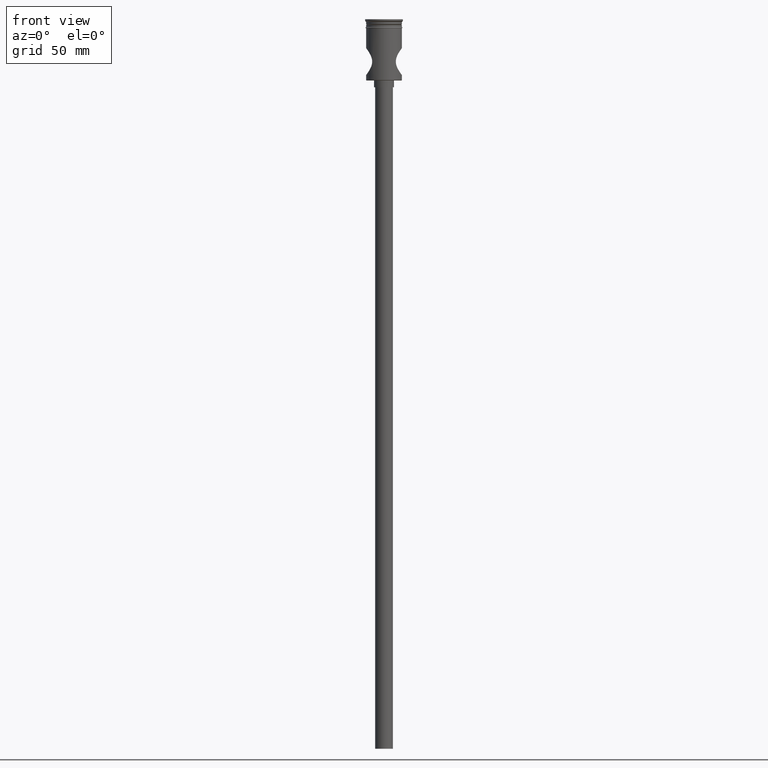
[diagram: clean part render]
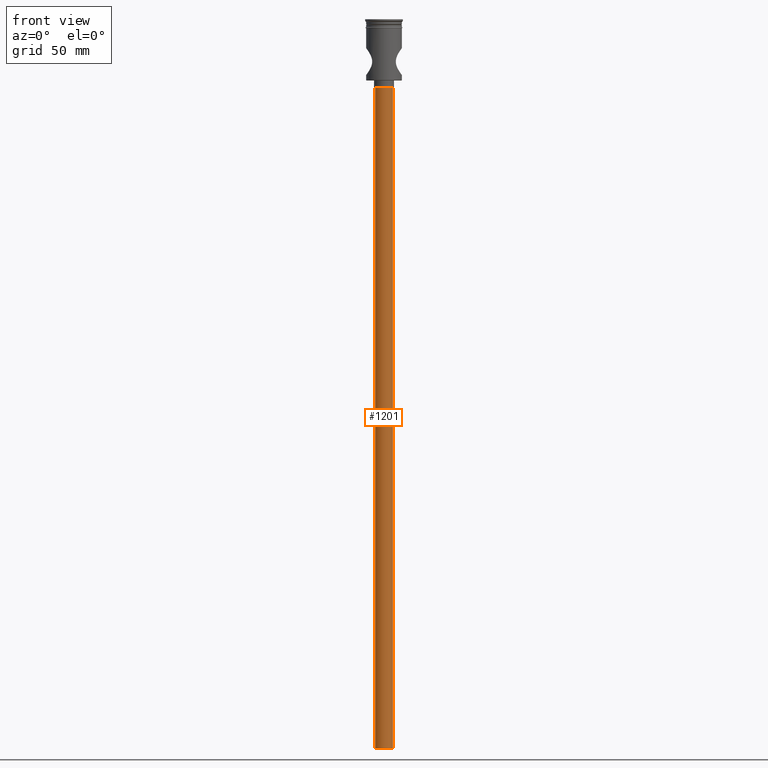
[diagram: same view with one face highlighted and labeled with its STEP entity id]
A machine part, front view. The second image highlights one B-rep face of the part: STEP entity #1201.
In plain terms, the highlighted cylindrical surface (edge-blend (fillet) strip) has radius 4 mm, axis along (-0, -0, 1).
Its self-contained STEP definition (entity closure, byte-faithful):
#13 = DIRECTION ( 'NONE',  ( -1.000000000000000000, 0.000000000000000000, 0.000000000000000000 ) ) ;
#26 = DIRECTION ( 'NONE',  ( -1.000000000000000000, 0.000000000000000000, 0.000000000000000000 ) ) ;
#123 = FACE_OUTER_BOUND ( 'NONE', #549, .T. ) ;
#129 = CIRCLE ( 'NONE', #226, 4.000000000000000000 ) ;
#136 = CARTESIAN_POINT ( 'NONE',  ( 4.000000000000000000, 0.000000000000000000, -327.5000000000000000 ) ) ;
#137 = EDGE_CURVE ( 'NONE', #626, #755, #732, .T. ) ;
#150 = DIRECTION ( 'NONE',  ( -0.000000000000000000, -0.000000000000000000, 1.000000000000000000 ) ) ;
#188 = EDGE_CURVE ( 'NONE', #626, #1164, #129, .T. ) ;
#223 = CARTESIAN_POINT ( 'NONE',  ( 4.000000000000000000, 0.000000000000000000, -30.50000000000000000 ) ) ;
#226 = AXIS2_PLACEMENT_3D ( 'NONE', #854, #1454, #26 ) ;
#275 = LINE ( 'NONE', #630, #747 ) ;
#282 = ORIENTED_EDGE ( 'NONE', *, *, #188, .F. ) ;
#362 = CARTESIAN_POINT ( 'NONE',  ( -4.000000000000000000, 4.898587196589412829E-16, -327.5000000000000000 ) ) ;
#428 = EDGE_CURVE ( 'NONE', #1164, #928, #275, .T. ) ;
#432 = CIRCLE ( 'NONE', #1364, 4.000000000000000000 ) ;
#452 = VECTOR ( 'NONE', #1072, 1000.000000000000000 ) ;
#481 = CARTESIAN_POINT ( 'NONE',  ( 0.000000000000000000, 0.000000000000000000, -327.5000000000000000 ) ) ;
#549 = EDGE_LOOP ( 'NONE', ( #1470, #282, #826, #981 ) ) ;
#575 = AXIS2_PLACEMENT_3D ( 'NONE', #481, #1448, #855 ) ;
#586 = CARTESIAN_POINT ( 'NONE',  ( 0.000000000000000000, 0.000000000000000000, -30.50000000000000000 ) ) ;
#593 = DIRECTION ( 'NONE',  ( 0.000000000000000000, 0.000000000000000000, -1.000000000000000000 ) ) ;
#626 = VERTEX_POINT ( 'NONE', #136 ) ;
#630 = CARTESIAN_POINT ( 'NONE',  ( -4.000000000000000000, 4.898587196589412829E-16, -327.5000000000000000 ) ) ;
#732 = LINE ( 'NONE', #1196, #452 ) ;
#747 = VECTOR ( 'NONE', #150, 1000.000000000000000 ) ;
#755 = VERTEX_POINT ( 'NONE', #223 ) ;
#826 = ORIENTED_EDGE ( 'NONE', *, *, #137, .T. ) ;
#854 = CARTESIAN_POINT ( 'NONE',  ( 0.000000000000000000, 0.000000000000000000, -327.5000000000000000 ) ) ;
#855 = DIRECTION ( 'NONE',  ( 1.000000000000000000, 0.000000000000000000, 0.000000000000000000 ) ) ;
#928 = VERTEX_POINT ( 'NONE', #1337 ) ;
#981 = ORIENTED_EDGE ( 'NONE', *, *, #1114, .T. ) ;
#1063 = CYLINDRICAL_SURFACE ( 'NONE', #575, 4.000000000000000000 ) ;
#1072 = DIRECTION ( 'NONE',  ( -0.000000000000000000, -0.000000000000000000, 1.000000000000000000 ) ) ;
#1114 = EDGE_CURVE ( 'NONE', #755, #928, #432, .T. ) ;
#1164 = VERTEX_POINT ( 'NONE', #362 ) ;
#1196 = CARTESIAN_POINT ( 'NONE',  ( 4.000000000000000000, 0.000000000000000000, -327.5000000000000000 ) ) ;
#1201 = ADVANCED_FACE ( 'NONE', ( #123 ), #1063, .T. ) ;
#1337 = CARTESIAN_POINT ( 'NONE',  ( -4.000000000000000000, 4.898587196589412829E-16, -30.50000000000000000 ) ) ;
#1364 = AXIS2_PLACEMENT_3D ( 'NONE', #586, #593, #13 ) ;
#1448 = DIRECTION ( 'NONE',  ( -0.000000000000000000, -0.000000000000000000, 1.000000000000000000 ) ) ;
#1454 = DIRECTION ( 'NONE',  ( 0.000000000000000000, 0.000000000000000000, -1.000000000000000000 ) ) ;
#1470 = ORIENTED_EDGE ( 'NONE', *, *, #428, .F. ) ;